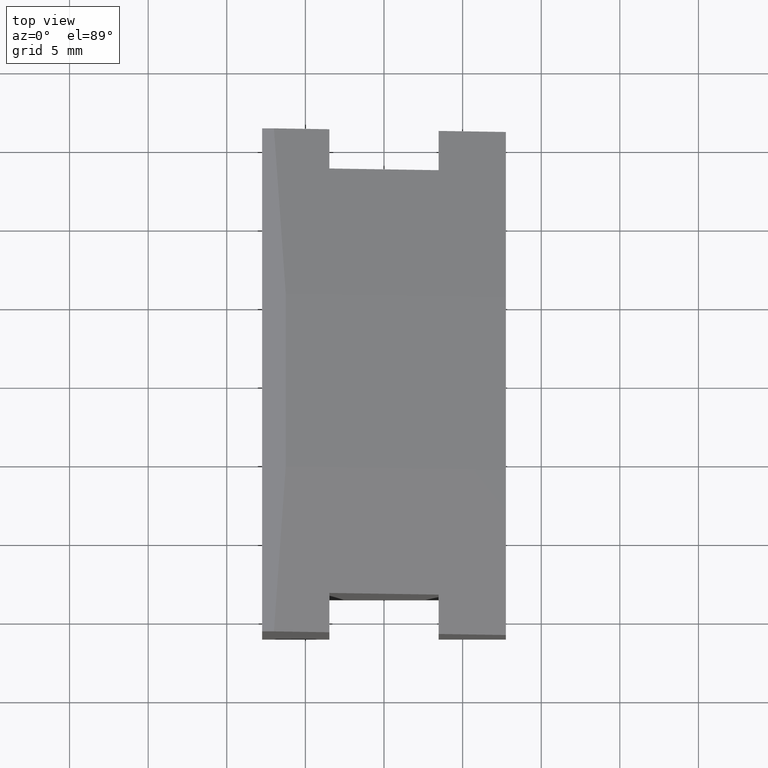
[diagram: clean part render]
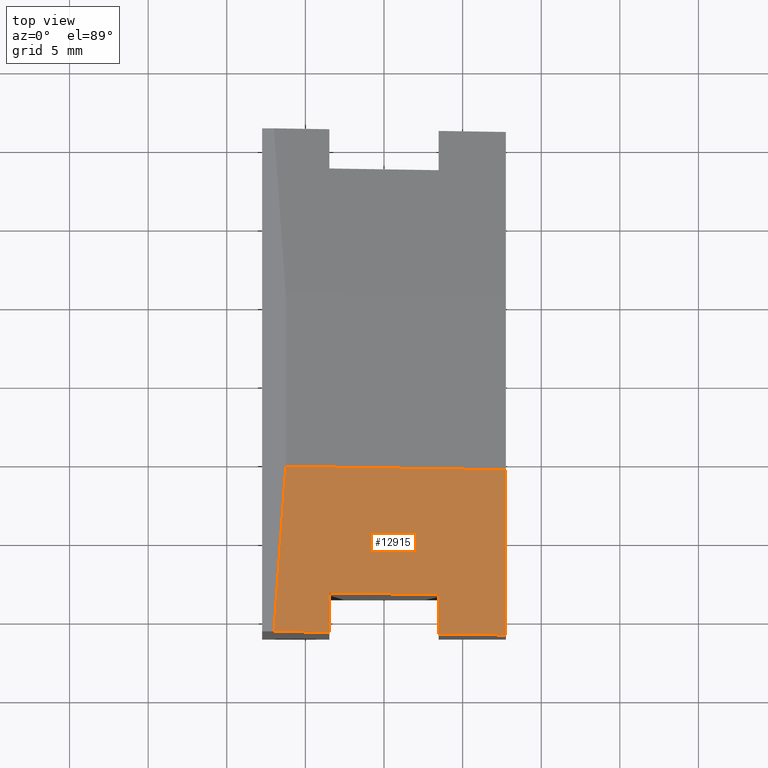
[diagram: same view with one face highlighted and labeled with its STEP entity id]
A machine part, top view. The second image highlights one B-rep face of the part: STEP entity #12915.
In plain terms, the highlighted planar face has unit normal (0.6653, -0.0476, 0.7451).
Its self-contained STEP definition (entity closure, byte-faithful):
#210 = EDGE_CURVE ( 'NONE', #11603, #6332, #3399, .T. ) ;
#270 = CARTESIAN_POINT ( 'NONE',  ( -6.921184076365187288, -0.3462800762225866635, 15.92827383447099976 ) ) ;
#332 = CARTESIAN_POINT ( 'NONE',  ( 7.750000000000000000, 16.70747154244129717, 3.917676971254120843 ) ) ;
#658 = ORIENTED_EDGE ( 'NONE', *, *, #4555, .T. ) ;
#893 = VECTOR ( 'NONE', #11157, 1000.000000000000114 ) ;
#1239 = VECTOR ( 'NONE', #5355, 999.9999999999998863 ) ;
#1498 = CARTESIAN_POINT ( 'NONE',  ( -6.249999999999995559, -5.500000000000003553, 15.00000000000000355 ) ) ;
#1570 = CARTESIAN_POINT ( 'NONE',  ( -3.474999999999996536, -16.00000000000000355, 11.85202412931699456 ) ) ;
#1620 = LINE ( 'NONE', #10850, #5602 ) ;
#1730 = EDGE_LOOP ( 'NONE', ( #11222, #658, #3704, #9747, #1915, #2958, #11585, #3345 ) ) ;
#1741 = CARTESIAN_POINT ( 'NONE',  ( 7.750000000000000000, -5.500000000000095035, 2.500000000000002220 ) ) ;
#1869 = VECTOR ( 'NONE', #2114, 1000.000000000000000 ) ;
#1915 = ORIENTED_EDGE ( 'NONE', *, *, #210, .T. ) ;
#2017 = CARTESIAN_POINT ( 'NONE',  ( -3.474999999999996536, -13.50000000000000000, 12.01161872437757339 ) ) ;
#2114 = DIRECTION ( 'NONE',  ( -0.07131632577931368289, -0.9974537491419533941, 0.000000000000000000 ) ) ;
#2164 = CARTESIAN_POINT ( 'NONE',  ( -5.826971334603529229, 0.4166190024978963513, 15.00000000000000000 ) ) ;
#2326 = DIRECTION ( 'NONE',  ( 0.6652619311846419414, -0.04756514941545150060, 0.7450933629267989522 ) ) ;
#2654 = VECTOR ( 'NONE', #7984, 1000.000000000000000 ) ;
#2958 = ORIENTED_EDGE ( 'NONE', *, *, #10752, .T. ) ;
#3199 = VERTEX_POINT ( 'NONE', #13059 ) ;
#3282 = DIRECTION ( 'NONE',  ( 0.000000000000000000, 0.9979685720761735102, 0.06370815605747312538 ) ) ;
#3345 = ORIENTED_EDGE ( 'NONE', *, *, #5568, .T. ) ;
#3399 = LINE ( 'NONE', #332, #9850 ) ;
#3704 = ORIENTED_EDGE ( 'NONE', *, *, #6456, .T. ) ;
#4555 = EDGE_CURVE ( 'NONE', #4987, #4628, #9133, .T. ) ;
#4606 = CARTESIAN_POINT ( 'NONE',  ( 7.750000000000000000, -16.00000000000001066, 1.829702700745567068 ) ) ;
#4628 = VERTEX_POINT ( 'NONE', #5203 ) ;
#4984 = EDGE_CURVE ( 'NONE', #3199, #11603, #12444, .T. ) ;
#4987 = VERTEX_POINT ( 'NONE', #2017 ) ;
#5068 = EDGE_CURVE ( 'NONE', #11913, #6345, #7890, .T. ) ;
#5118 = FACE_OUTER_BOUND ( 'NONE', #1730, .T. ) ;
#5203 = CARTESIAN_POINT ( 'NONE',  ( 3.475000000000003642, -13.50000000000000000, 5.806261581520428372 ) ) ;
#5355 = DIRECTION ( 'NONE',  ( -0.7459376616259146831, -2.330640796091878350E-15, 0.6660157693088524233 ) ) ;
#5393 = VERTEX_POINT ( 'NONE', #1570 ) ;
#5568 = EDGE_CURVE ( 'NONE', #6345, #5393, #6457, .T. ) ;
#5602 = VECTOR ( 'NONE', #12837, 999.9999999999998863 ) ;
#6286 = LINE ( 'NONE', #12279, #893 ) ;
#6332 = VERTEX_POINT ( 'NONE', #1741 ) ;
#6345 = VERTEX_POINT ( 'NONE', #11840 ) ;
#6456 = EDGE_CURVE ( 'NONE', #4628, #3199, #6286, .T. ) ;
#6457 = LINE ( 'NONE', #10998, #2654 ) ;
#6466 = VECTOR ( 'NONE', #6969, 1000.000000000000000 ) ;
#6969 = DIRECTION ( 'NONE',  ( 0.7459376616259146831, 0.000000000000000000, -0.6660157693088524233 ) ) ;
#7285 = DIRECTION ( 'NONE',  ( 0.7459376616259146831, 0.000000000000000000, -0.6660157693088524233 ) ) ;
#7890 = LINE ( 'NONE', #2164, #1869 ) ;
#7984 = DIRECTION ( 'NONE',  ( 0.7459376616259146831, 0.000000000000000000, -0.6660157693088524233 ) ) ;
#9133 = LINE ( 'NONE', #9915, #6466 ) ;
#9456 = VECTOR ( 'NONE', #12039, 1000.000000000000000 ) ;
#9469 = PLANE ( 'NONE',  #10100 ) ;
#9527 = CARTESIAN_POINT ( 'NONE',  ( -6.250000000000018652, -5.500000000000115463, 15.00000000000001421 ) ) ;
#9747 = ORIENTED_EDGE ( 'NONE', *, *, #4984, .T. ) ;
#9850 = VECTOR ( 'NONE', #3282, 999.9999999999998863 ) ;
#9915 = CARTESIAN_POINT ( 'NONE',  ( -1.092506666384452485, -13.50000000000000000, 9.884392533649407397 ) ) ;
#10100 = AXIS2_PLACEMENT_3D ( 'NONE', #270, #2326, #7285 ) ;
#10752 = EDGE_CURVE ( 'NONE', #6332, #11913, #12937, .T. ) ;
#10850 = CARTESIAN_POINT ( 'NONE',  ( -3.474999999999996536, -13.31000249123679069, 12.02374775456700817 ) ) ;
#10998 = CARTESIAN_POINT ( 'NONE',  ( -7.417642377202347426, -16.00000000000000355, 15.37224053753337927 ) ) ;
#11157 = DIRECTION ( 'NONE',  ( -1.793028064205715846E-16, -0.9979685720761735102, -0.06370815605747295884 ) ) ;
#11222 = ORIENTED_EDGE ( 'NONE', *, *, #11986, .T. ) ;
#11585 = ORIENTED_EDGE ( 'NONE', *, *, #5068, .T. ) ;
#11603 = VERTEX_POINT ( 'NONE', #4606 ) ;
#11840 = CARTESIAN_POINT ( 'NONE',  ( -7.000732975164963179, -16.00000000000000711, 15.00000000000000000 ) ) ;
#11913 = VERTEX_POINT ( 'NONE', #1498 ) ;
#11986 = EDGE_CURVE ( 'NONE', #5393, #4987, #1620, .T. ) ;
#12039 = DIRECTION ( 'NONE',  ( 0.7459376616259146831, 0.000000000000000000, -0.6660157693088524233 ) ) ;
#12279 = CARTESIAN_POINT ( 'NONE',  ( 3.475000000000003197, -15.40532689529880983, 5.684629631795130145 ) ) ;
#12444 = LINE ( 'NONE', #12974, #9456 ) ;
#12837 = DIRECTION ( 'NONE',  ( -1.731199510267587730E-16, 0.9979685720761735102, 0.06370815605747327803 ) ) ;
#12915 = ADVANCED_FACE ( 'NONE', ( #5118 ), #9469, .T. ) ;
#12937 = LINE ( 'NONE', #9527, #1239 ) ;
#12974 = CARTESIAN_POINT ( 'NONE',  ( -7.417642377202347426, -16.00000000000000355, 15.37224053753337927 ) ) ;
#13059 = CARTESIAN_POINT ( 'NONE',  ( 3.475000000000005862, -16.00000000000000355, 5.646666986459849547 ) ) ;